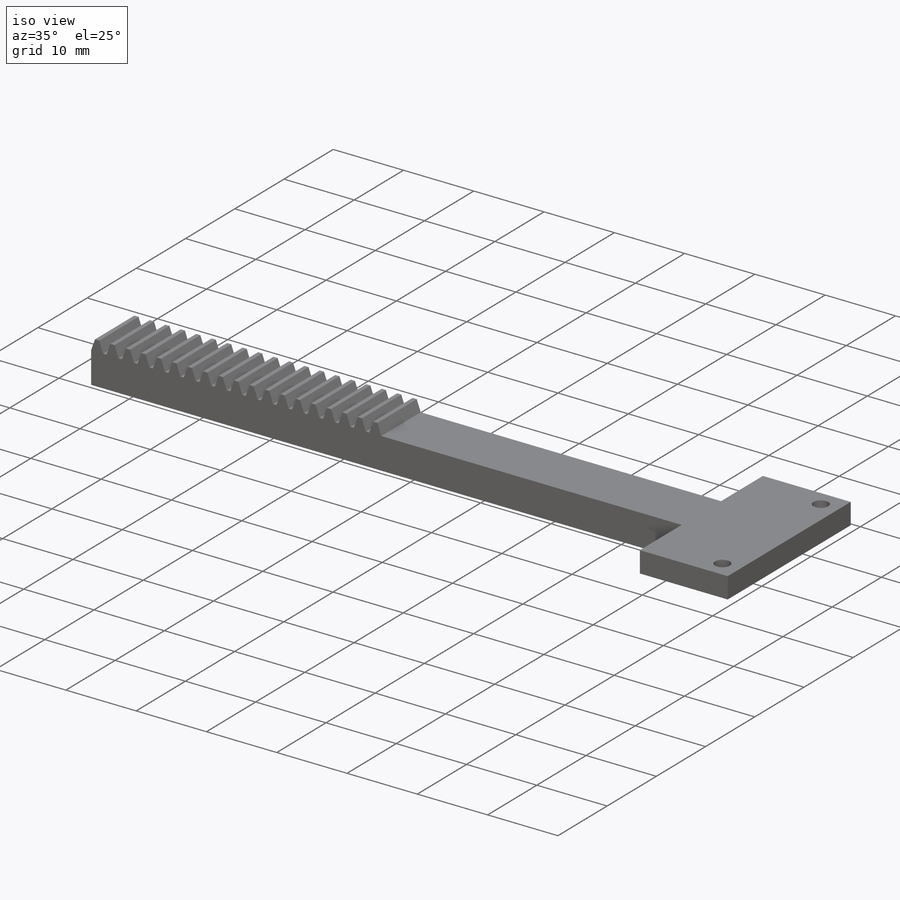
[diagram: iso view]
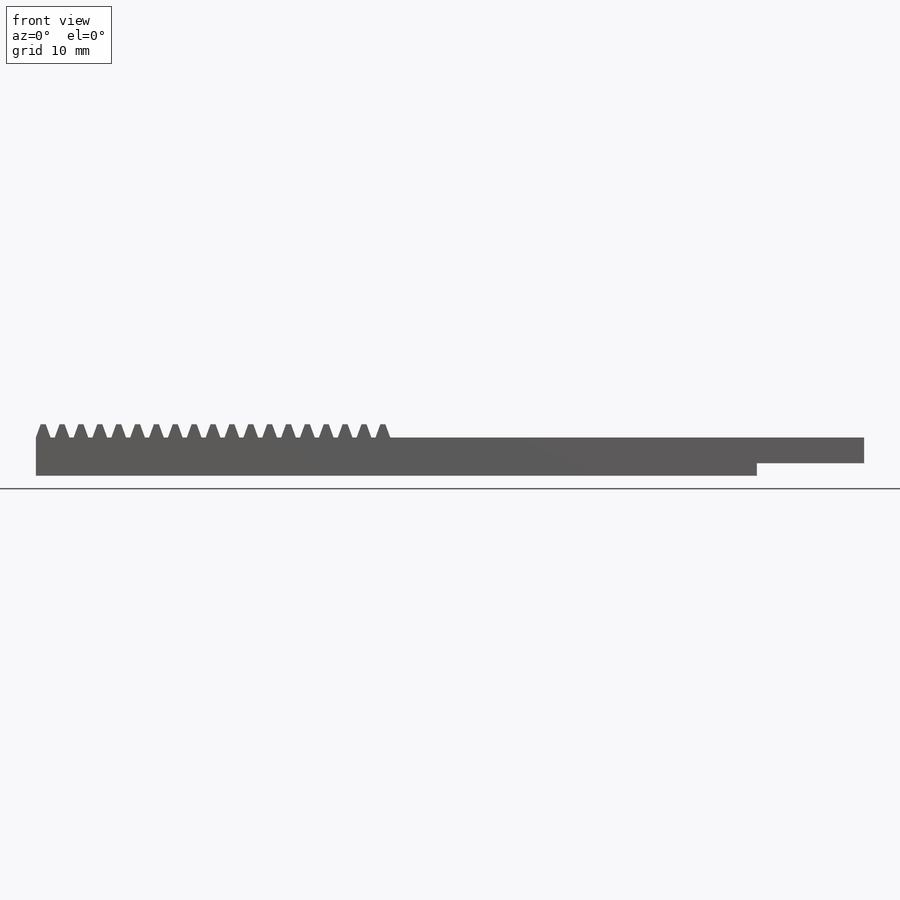
[diagram: front view]
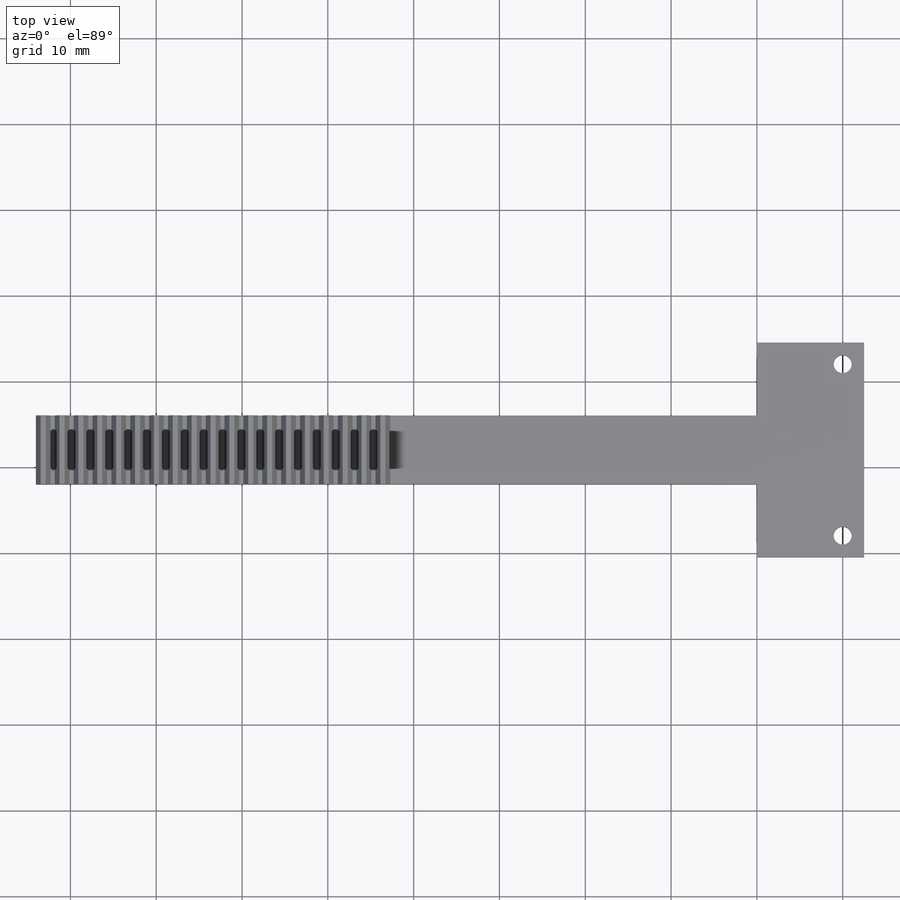
[diagram: top view]
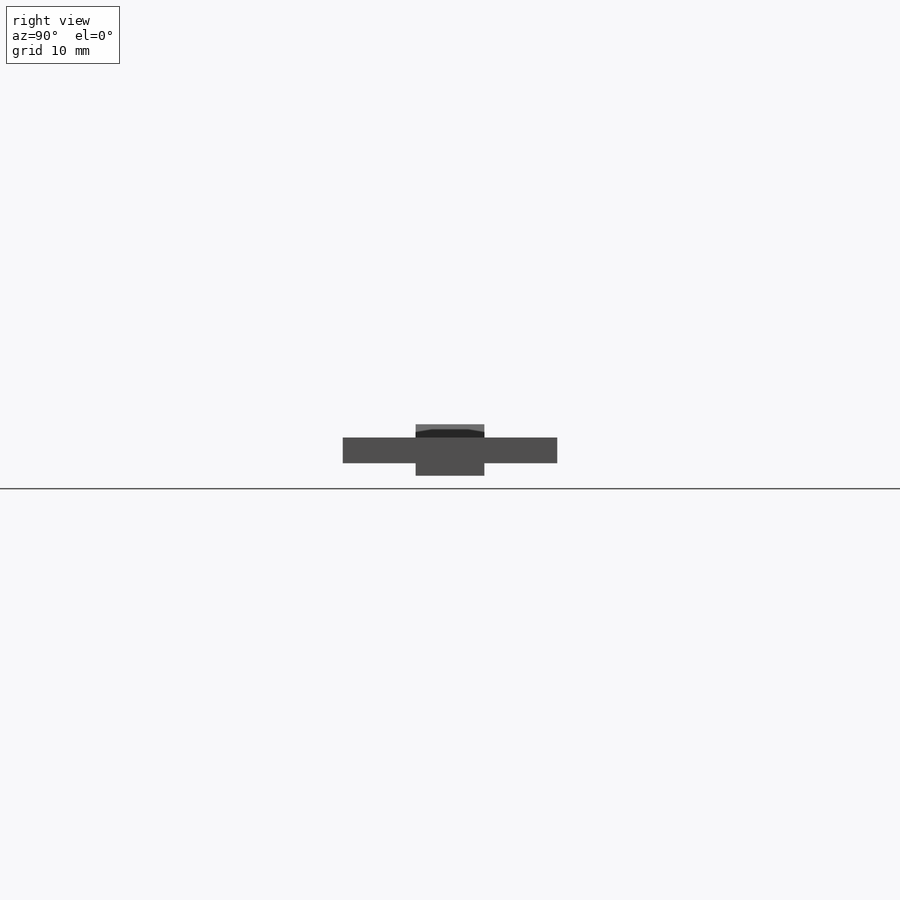
[diagram: right view]
SOLIDWORKS PART (.sldprt)
format: sldprt  version: not decoded by parser v0  size: 396,288 bytes
history: native  units: mm
features: plane x4, sketch x4, extrude x2, cut_extrude x2, material x1 (+8 scaffold rows collapsed)
feature tree (21):
  scaffold x8  (default folders/planes/origin — collapsed)
  material  "Matériau <non spécifié>"
  plane  "Plan de face"
  plane  "Plan de dessus"
  plane  "Plan de droite"
  plane  "Plan1"  Offset=2mm
  sketch  "Esquisse1"  dims[D1=140.0mm]
  extrude  "Boss.-Extru.1"  Depth=8mm
  sketch  "Esquisse3"  dims[D1=3.0mm D2=25.0mm D3=8.5mm]
  extrude  "Boss.-Extru.3"  Depth=12.5mm
  sketch  "Esquisse4"  dims[c1.D1=2.1mm c1.D2=2.1mm c1.D4=3.3mm c1.D5=3.3mm c1.D3=20.0mm c2.D4=2.5mm c2.D5=10.0mm]
  cut_extrude  "Enlèv. mat.-Extru.1"  Depth=10mm
  sketch  "Esquisse7"
  cut_extrude  "Enlèv. mat.-Extru.2"  Depth=55mm
decode coverage: 7 of 8 modeling features carry decoded parameters
note: suppression state not decoded; provenance and decode notes live in map.json
